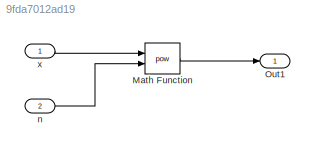
MODEL slx_9fda7012ad19
KIND model
CONFIG AbsTol = auto
CONFIG EnableMultiTasking = off
CONFIG FixedStep = auto
CONFIG MaxStep = auto
CONFIG MinStep = auto
CONFIG RelTol = 1e-3
CONFIG SampleTimeConstraint = Unconstrained
CONFIG Solver = VariableStepAuto
CONFIG SolverName = VariableStepAuto
CONFIG StartTime = 0.0
CONFIG StopTime = 10.0
BLOCK [Math] Math Function
  Operator = pow
  Ports = [2, 1]
  SignedPower = off
BLOCK [Outport] Out1
  IconDisplay = Port number
BLOCK [Inport] n
  IconDisplay = Port number
  OutDataTypeStr = uint8
  Port = 2
BLOCK [Inport] x
  IconDisplay = Port number
LINE Math Function:1 -> Out1:1
LINE n:1 -> Math Function:2
LINE x:1 -> Math Function:1
